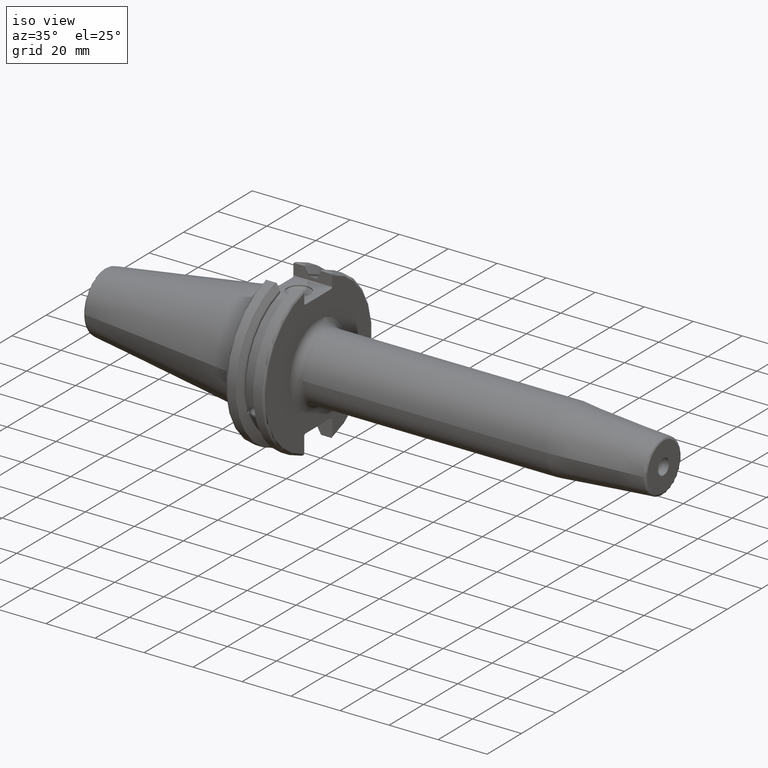
[diagram: clean part render]
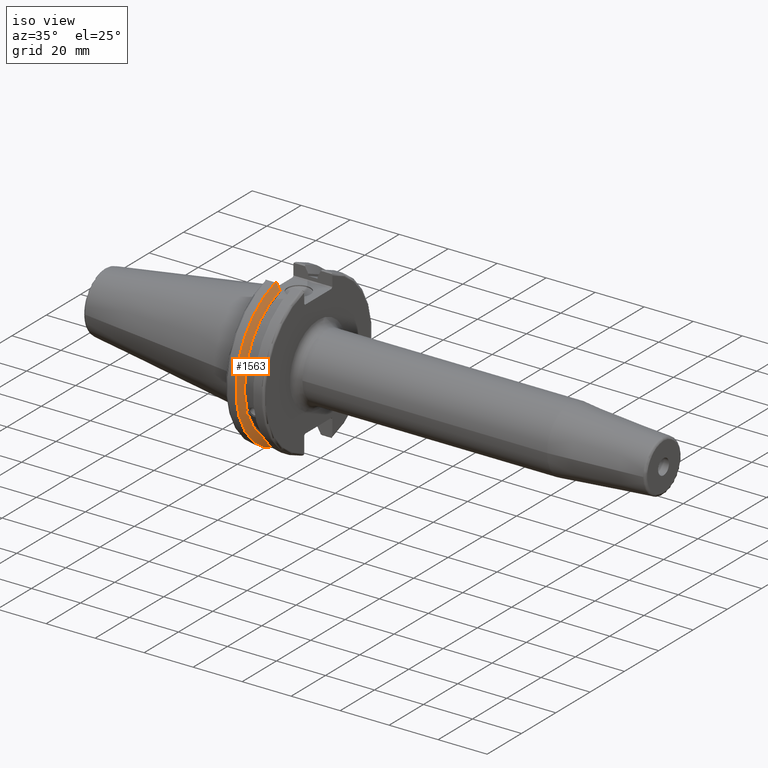
[diagram: same view with one face highlighted and labeled with its STEP entity id]
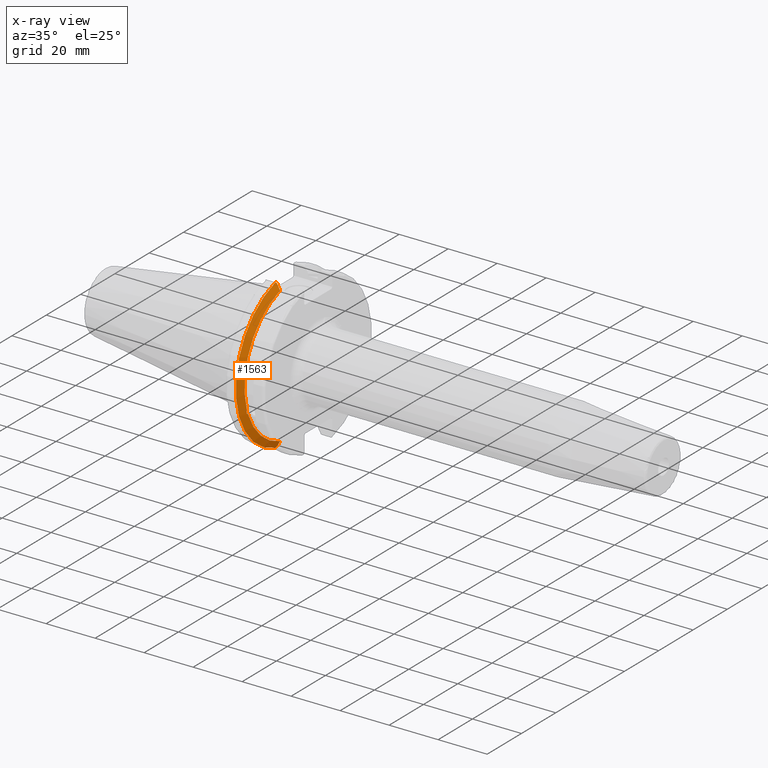
[diagram: x-ray of the same camera — body ghosted, the highlighted face saturated]
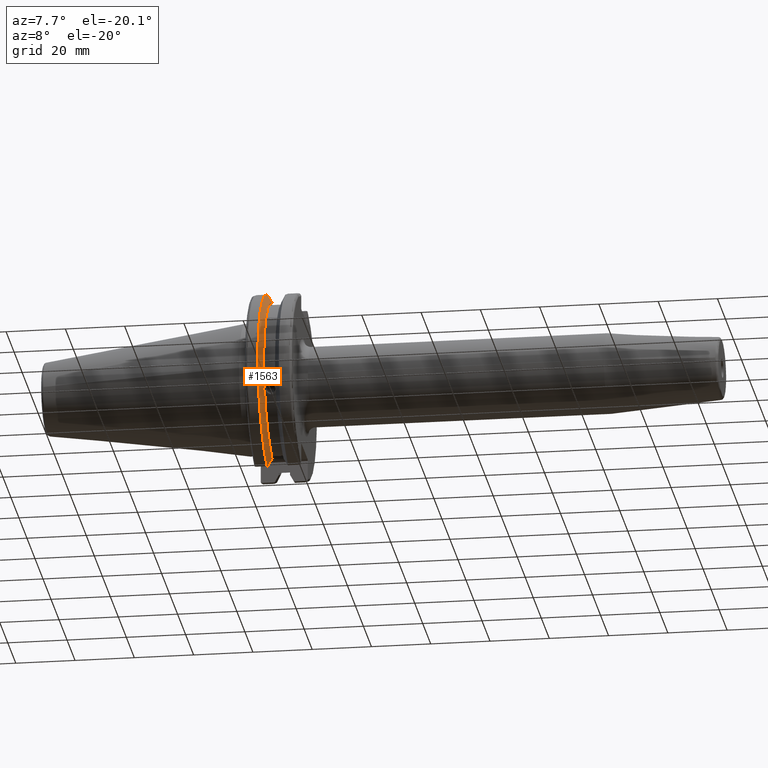
[diagram: same view with one face highlighted and labeled with its STEP entity id]
A machine part, iso view. The second image highlights one B-rep face of the part: STEP entity #1563.
The next image is the same camera in x-ray: the body ghosted, the highlighted face saturated — about 0% of this face is hidden behind the body in this view.
A second angle (auxiliary view) of the same face is appended — the face is thin or edge-on in the first view.
In plain terms, the highlighted conical surface has half-angle 60 deg.
Its self-contained STEP definition (entity closure, byte-faithful):
#25=(
BOUNDED_CURVE()
B_SPLINE_CURVE(2,(#2817,#2818,#2819),.UNSPECIFIED.,.F.,.F.)
B_SPLINE_CURVE_WITH_KNOTS((3,3),(0.,0.276549142796136),.UNSPECIFIED.)
CURVE()
GEOMETRIC_REPRESENTATION_ITEM()
RATIONAL_B_SPLINE_CURVE((1.,1.00095203903316,1.00031614444813))
REPRESENTATION_ITEM('')
);
#26=(
BOUNDED_CURVE()
B_SPLINE_CURVE(2,(#2829,#2830,#2831),.UNSPECIFIED.,.F.,.F.)
B_SPLINE_CURVE_WITH_KNOTS((3,3),(0.0550586467392022,0.33160778953585),
 .UNSPECIFIED.)
CURVE()
GEOMETRIC_REPRESENTATION_ITEM()
RATIONAL_B_SPLINE_CURVE((1.00031614445148,1.00095203904325,1.))
REPRESENTATION_ITEM('')
);
#27=(
BOUNDED_CURVE()
B_SPLINE_CURVE(2,(#2864,#2865,#2866),.UNSPECIFIED.,.F.,.F.)
B_SPLINE_CURVE_WITH_KNOTS((3,3),(0.,0.0639048713676282),.UNSPECIFIED.)
CURVE()
GEOMETRIC_REPRESENTATION_ITEM()
RATIONAL_B_SPLINE_CURVE((1.,1.00028444218284,1.00047644010574))
REPRESENTATION_ITEM('')
);
#28=(
BOUNDED_CURVE()
B_SPLINE_CURVE(2,(#2872,#2873,#2874),.UNSPECIFIED.,.F.,.F.)
B_SPLINE_CURVE_WITH_KNOTS((3,3),(0.329353533631205,0.393258405001025),
 .UNSPECIFIED.)
CURVE()
GEOMETRIC_REPRESENTATION_ITEM()
RATIONAL_B_SPLINE_CURVE((1.00047644010572,1.00028444218283,1.))
REPRESENTATION_ITEM('')
);
#55=B_SPLINE_CURVE_WITH_KNOTS('',3,(#2427,#2428,#2429,#2430,#2431,#2432,
#2433,#2434,#2435,#2436,#2437,#2438,#2439,#2440),.UNSPECIFIED.,.F.,.F.,
(4,2,2,2,2,2,4),(0.451995700189024,0.464547828547663,0.504528771685167,
0.544509714822672,0.584490657960178,0.624471601097683,0.63702372945632),
 .UNSPECIFIED.);
#361=CONICAL_SURFACE('',#1763,30.3546886482472,1.0471975511966);
#447=FACE_OUTER_BOUND('',#550,.T.);
#550=EDGE_LOOP('',(#1458,#1459,#1460,#1461,#1462,#1463,#1464,#1465));
#582=CIRCLE('',#1653,28.9593772964944);
#606=CIRCLE('',#1713,31.75);
#624=CIRCLE('',#1764,28.9593772964944);
#669=VERTEX_POINT('',#2424);
#670=VERTEX_POINT('',#2426);
#687=VERTEX_POINT('',#2519);
#749=VERTEX_POINT('',#2814);
#750=VERTEX_POINT('',#2816);
#753=VERTEX_POINT('',#2828);
#757=VERTEX_POINT('',#2862);
#758=VERTEX_POINT('',#2868);
#835=EDGE_CURVE('',#670,#669,#55,.T.);
#859=EDGE_CURVE('',#670,#687,#582,.T.);
#946=EDGE_CURVE('',#750,#749,#25,.T.);
#952=EDGE_CURVE('',#753,#687,#26,.T.);
#960=EDGE_CURVE('',#757,#749,#27,.T.);
#962=EDGE_CURVE('',#757,#758,#606,.T.);
#963=EDGE_CURVE('',#753,#758,#28,.T.);
#1007=EDGE_CURVE('',#750,#669,#624,.T.);
#1458=ORIENTED_EDGE('',*,*,#835,.T.);
#1459=ORIENTED_EDGE('',*,*,#1007,.F.);
#1460=ORIENTED_EDGE('',*,*,#946,.T.);
#1461=ORIENTED_EDGE('',*,*,#960,.F.);
#1462=ORIENTED_EDGE('',*,*,#962,.T.);
#1463=ORIENTED_EDGE('',*,*,#963,.F.);
#1464=ORIENTED_EDGE('',*,*,#952,.T.);
#1465=ORIENTED_EDGE('',*,*,#859,.F.);
#1563=ADVANCED_FACE('',(#447),#361,.T.);
#1653=AXIS2_PLACEMENT_3D('',#2520,#1928,#1929);
#1713=AXIS2_PLACEMENT_3D('',#2870,#2091,#2092);
#1763=AXIS2_PLACEMENT_3D('',#2990,#2212,#2213);
#1764=AXIS2_PLACEMENT_3D('',#2991,#2214,#2215);
#1928=DIRECTION('center_axis',(1.,0.,0.));
#1929=DIRECTION('ref_axis',(0.,0.,-1.));
#2091=DIRECTION('center_axis',(1.,0.,0.));
#2092=DIRECTION('ref_axis',(0.,0.,-1.));
#2212=DIRECTION('center_axis',(-1.,0.,0.));
#2213=DIRECTION('ref_axis',(0.,-1.,-1.22464679914735E-16));
#2214=DIRECTION('center_axis',(1.,0.,0.));
#2215=DIRECTION('ref_axis',(0.,0.,-1.));
#2424=CARTESIAN_POINT('',(9.2191,-27.4956274489925,-9.09043478536245));
#2426=CARTESIAN_POINT('',(9.2191,-26.9060914640648,-10.7101715919071));
#2427=CARTESIAN_POINT('Ctrl Pts',(9.2191,-26.9060914640648,-10.7101715919071));
#2428=CARTESIAN_POINT('Ctrl Pts',(9.20497959280038,-26.9406927482839,-10.6893765730703));
#2429=CARTESIAN_POINT('Ctrl Pts',(9.19150701821433,-26.9744191989197,-10.6676007180673));
#2430=CARTESIAN_POINT('Ctrl Pts',(9.13811855884095,-27.1113422433189,-10.5723885976054));
#2431=CARTESIAN_POINT('Ctrl Pts',(9.09998029158246,-27.2180531796526,-10.4801333026531));
#2432=CARTESIAN_POINT('Ctrl Pts',(9.04778935539424,-27.3968610665578,-10.2639559818059));
#2433=CARTESIAN_POINT('Ctrl Pts',(9.0341,-27.4684373304961,-10.139516340139));
#2434=CARTESIAN_POINT('Ctrl Pts',(9.0341,-27.559599249844,-9.8890510252165));
#2435=CARTESIAN_POINT('Ctrl Pts',(9.04778935539424,-27.5847569104122,-9.74771639360671));
#2436=CARTESIAN_POINT('Ctrl Pts',(9.09998029158246,-27.5867382255984,-9.46717946402648));
#2437=CARTESIAN_POINT('Ctrl Pts',(9.13811855884095,-27.5642934663232,-9.32791534028655));
#2438=CARTESIAN_POINT('Ctrl Pts',(9.19150701821434,-27.5206055003512,-9.16696618806877));
#2439=CARTESIAN_POINT('Ctrl Pts',(9.20497959280038,-27.5087667900418,-9.12860597076217));
#2440=CARTESIAN_POINT('Ctrl Pts',(9.2191,-27.4956274489925,-9.09043478536245));
#2519=CARTESIAN_POINT('',(9.2191,-8.19,-27.7771386827498));
#2520=CARTESIAN_POINT('Origin',(9.2191,0.,0.));
#2814=CARTESIAN_POINT('',(7.88668530351257,-8.19,30.1755016258903));
#2816=CARTESIAN_POINT('',(9.2191,-8.19,27.7771386827498));
#2817=CARTESIAN_POINT('Ctrl Pts',(9.2191,-8.19,27.7771386827498));
#2818=CARTESIAN_POINT('Ctrl Pts',(8.58046356152393,-8.19,28.9303689539705));
#2819=CARTESIAN_POINT('Ctrl Pts',(7.88668530351257,-8.19,30.1755016258903));
#2828=CARTESIAN_POINT('',(7.88668530351256,-8.19,-30.1755016258903));
#2829=CARTESIAN_POINT('Ctrl Pts',(7.88668530351256,-8.19,-30.1755016258903));
#2830=CARTESIAN_POINT('Ctrl Pts',(8.5804635615235,-8.19,-28.9303689539712));
#2831=CARTESIAN_POINT('Ctrl Pts',(9.2191,-8.19,-27.7771386827498));
#2862=CARTESIAN_POINT('',(7.60793323092436,-8.67204822802685,30.5427254764662));
#2864=CARTESIAN_POINT('Ctrl Pts',(7.60793323092436,-8.67204822802686,30.5427254764662));
#2865=CARTESIAN_POINT('Ctrl Pts',(7.74899148121626,-8.42917748262648,30.357706789263));
#2866=CARTESIAN_POINT('Ctrl Pts',(7.88668530351257,-8.19,30.1755016258903));
#2868=CARTESIAN_POINT('',(7.60793323092436,-8.67204822802685,-30.5427254764662));
#2870=CARTESIAN_POINT('Origin',(7.60793323092436,0.,0.));
#2872=CARTESIAN_POINT('Ctrl Pts',(7.88668530351256,-8.19,-30.1755016258903));
#2873=CARTESIAN_POINT('Ctrl Pts',(7.74899148121159,-8.42917748263467,-30.3577067892692));
#2874=CARTESIAN_POINT('Ctrl Pts',(7.60793323092435,-8.67204822802687,-30.5427254764662));
#2990=CARTESIAN_POINT('Origin',(8.41351661546218,0.,0.));
#2991=CARTESIAN_POINT('Origin',(9.2191,0.,0.));